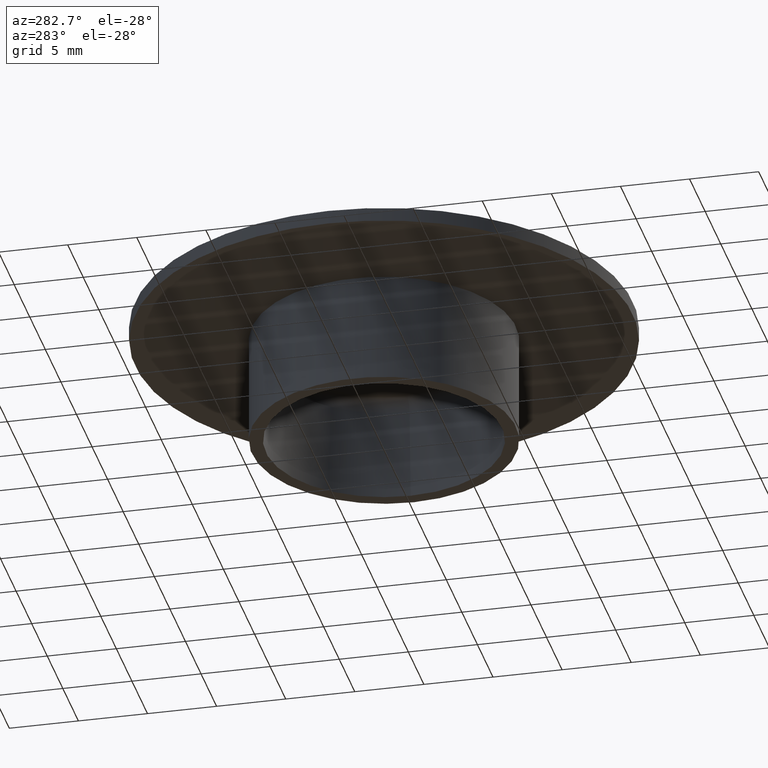
[diagram: clean part render]
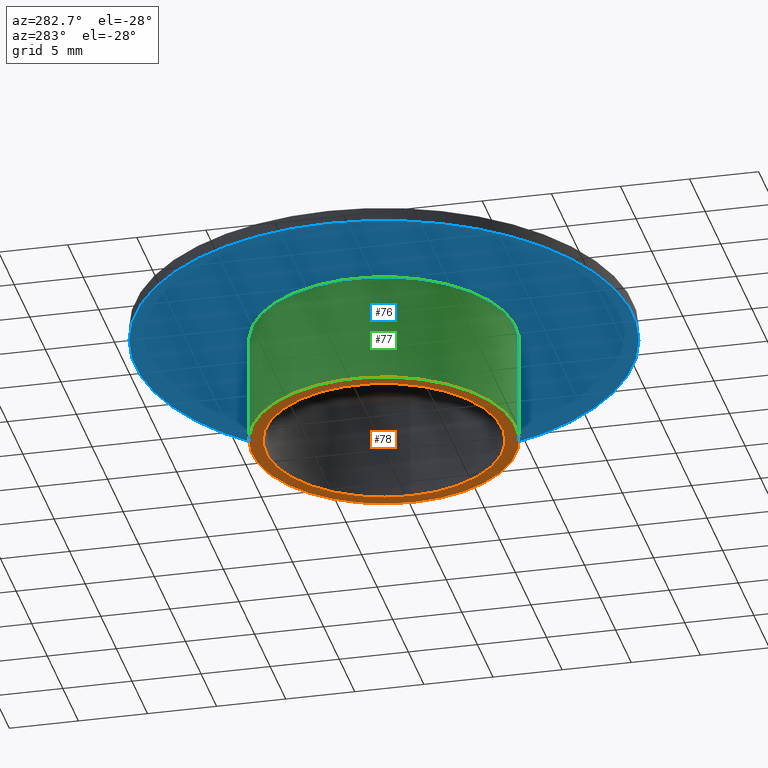
[diagram: same view with three faces highlighted in distinct colors, each labeled with its STEP entity id]
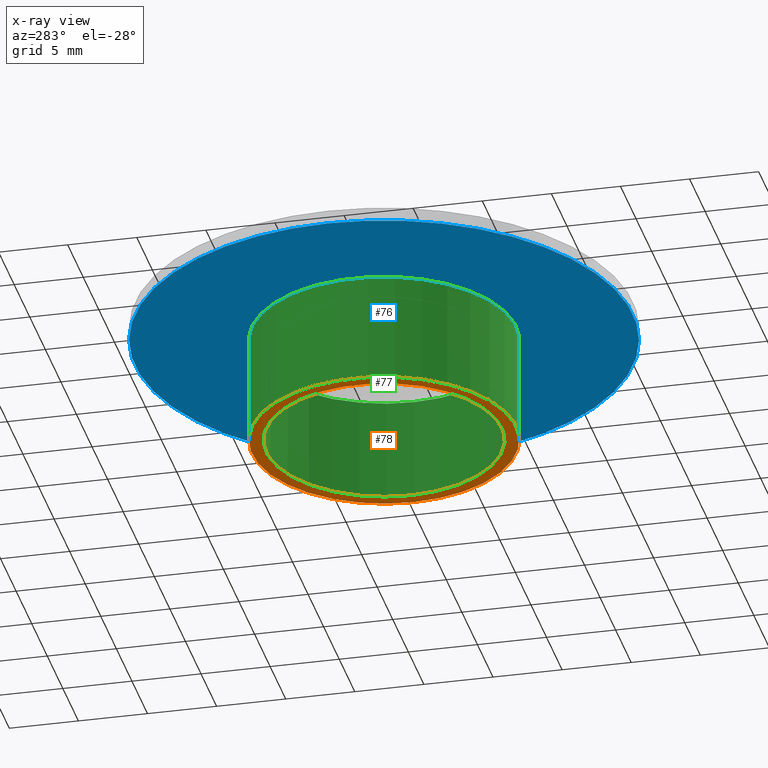
[diagram: x-ray of the same camera — body ghosted, the three highlighted faces saturated]
A machine part, auxiliary view with three faces highlighted in distinct colors.
The next image is the same camera in x-ray (body ghosted, the three faces saturated) — at least one of them is partly hidden behind the body in this view.
Their STEP definitions:

[orange] entity #78 — the highlighted planar face has unit normal (-0, 0, 1).
#78 = ADVANCED_FACE( '', ( #93, #94 ), #95, .F. );
#93 = FACE_OUTER_BOUND( '', #115, .T. );
#94 = FACE_BOUND( '', #116, .T. );
#95 = PLANE( '', #117 );
#115 = EDGE_LOOP( '', ( #143 ) );
#116 = EDGE_LOOP( '', ( #144 ) );
#117 = AXIS2_PLACEMENT_3D( '', #145, #146, #147 );
#143 = ORIENTED_EDGE( '', *, *, #169, .F. );
#144 = ORIENTED_EDGE( '', *, *, #170, .T. );
#145 = CARTESIAN_POINT( '', ( 2.12435339080604E-031, 8.54999999999999, -3.46944695195361E-015 ) );
#146 = DIRECTION( '', ( -6.12303176911189E-017, 0.000000000000000, 1.00000000000000 ) );
#147 = DIRECTION( '', ( 1.00000000000000, 0.000000000000000, 6.12303176911189E-017 ) );
#169 = EDGE_CURVE( '', #179, #179, #180, .T. );
#170 = EDGE_CURVE( '', #181, #181, #182, .T. );
#179 = VERTEX_POINT( '', #193 );
#180 = CIRCLE( '', #194, 9.54999999999999 );
#181 = VERTEX_POINT( '', #195 );
#182 = CIRCLE( '', #196, 8.54999999999999 );
#193 = CARTESIAN_POINT( '', ( 9.54999999999999, 0.000000000000000, -6.35414436995704E-015 ) );
#194 = AXIS2_PLACEMENT_3D( '', #210, #211, #212 );
#195 = CARTESIAN_POINT( '', ( 8.54999999999999, 0.000000000000000, -6.41537468764816E-015 ) );
#196 = AXIS2_PLACEMENT_3D( '', #213, #214, #215 );
#210 = CARTESIAN_POINT( '', ( 4.24870678161208E-031, 0.000000000000000, -6.93889390390723E-015 ) );
#211 = DIRECTION( '', ( -6.12303176911189E-017, 0.000000000000000, 1.00000000000000 ) );
#212 = DIRECTION( '', ( 1.00000000000000, 0.000000000000000, 6.12303176911189E-017 ) );
#213 = CARTESIAN_POINT( '', ( 4.24870678161208E-031, 0.000000000000000, -6.93889390390723E-015 ) );
#214 = DIRECTION( '', ( -6.12303176911189E-017, 0.000000000000000, 1.00000000000000 ) );
#215 = DIRECTION( '', ( 1.00000000000000, 0.000000000000000, 6.12303176911189E-017 ) );

[blue] entity #76 — the highlighted planar face has unit normal (-0, 0, 1).
#76 = ADVANCED_FACE( '', ( #87, #88 ), #89, .F. );
#87 = FACE_OUTER_BOUND( '', #109, .T. );
#88 = FACE_BOUND( '', #110, .T. );
#89 = PLANE( '', #111 );
#109 = EDGE_LOOP( '', ( #133 ) );
#110 = EDGE_LOOP( '', ( #134 ) );
#111 = AXIS2_PLACEMENT_3D( '', #135, #136, #137 );
#133 = ORIENTED_EDGE( '', *, *, #167, .F. );
#134 = ORIENTED_EDGE( '', *, *, #168, .T. );
#135 = CARTESIAN_POINT( '', ( -4.89842541528951E-016, 9.54999999999999, 8.00000000000000 ) );
#136 = DIRECTION( '', ( -6.12303176911189E-017, 0.000000000000000, 1.00000000000000 ) );
#137 = DIRECTION( '', ( 1.00000000000000, 0.000000000000000, 6.12303176911189E-017 ) );
#167 = EDGE_CURVE( '', #175, #175, #176, .T. );
#168 = EDGE_CURVE( '', #177, #177, #178, .T. );
#175 = VERTEX_POINT( '', #189 );
#176 = CIRCLE( '', #190, 18.0000000000000 );
#177 = VERTEX_POINT( '', #191 );
#178 = CIRCLE( '', #192, 9.55000000000000 );
#189 = CARTESIAN_POINT( '', ( 18.0000000000000, 0.000000000000000, 8.00000000000000 ) );
#190 = AXIS2_PLACEMENT_3D( '', #204, #205, #206 );
#191 = CARTESIAN_POINT( '', ( 9.55000000000000, 0.000000000000000, 8.00000000000000 ) );
#192 = AXIS2_PLACEMENT_3D( '', #207, #208, #209 );
#204 = CARTESIAN_POINT( '', ( -4.89842541528951E-016, 0.000000000000000, 8.00000000000000 ) );
#205 = DIRECTION( '', ( -6.12303176911189E-017, 0.000000000000000, 1.00000000000000 ) );
#206 = DIRECTION( '', ( 1.00000000000000, 0.000000000000000, 6.12303176911189E-017 ) );
#207 = CARTESIAN_POINT( '', ( -4.89842541528951E-016, 0.000000000000000, 8.00000000000000 ) );
#208 = DIRECTION( '', ( -6.12303176911189E-017, 0.000000000000000, 1.00000000000000 ) );
#209 = DIRECTION( '', ( 1.00000000000000, 0.000000000000000, 6.12303176911189E-017 ) );

[green] entity #77 — the highlighted cylindrical surface (bore or boss wall) has radius 9.55 mm, axis along (0, 0, -1).
#77 = ADVANCED_FACE( '', ( #90, #91 ), #92, .T. );
#90 = FACE_OUTER_BOUND( '', #112, .T. );
#91 = FACE_OUTER_BOUND( '', #113, .T. );
#92 = CYLINDRICAL_SURFACE( '', #114, 9.55000000000000 );
#112 = EDGE_LOOP( '', ( #138 ) );
#113 = EDGE_LOOP( '', ( #139 ) );
#114 = AXIS2_PLACEMENT_3D( '', #140, #141, #142 );
#138 = ORIENTED_EDGE( '', *, *, #168, .F. );
#139 = ORIENTED_EDGE( '', *, *, #169, .T. );
#140 = CARTESIAN_POINT( '', ( -9.67439019519678E-015, 0.000000000000000, 158.000000000000 ) );
#141 = DIRECTION( '', ( 6.12303176911189E-017, 0.000000000000000, -1.00000000000000 ) );
#142 = DIRECTION( '', ( 1.00000000000000, 0.000000000000000, 6.12303176911189E-017 ) );
#168 = EDGE_CURVE( '', #177, #177, #178, .T. );
#169 = EDGE_CURVE( '', #179, #179, #180, .T. );
#177 = VERTEX_POINT( '', #191 );
#178 = CIRCLE( '', #192, 9.55000000000000 );
#179 = VERTEX_POINT( '', #193 );
#180 = CIRCLE( '', #194, 9.54999999999999 );
#191 = CARTESIAN_POINT( '', ( 9.55000000000000, 0.000000000000000, 8.00000000000000 ) );
#192 = AXIS2_PLACEMENT_3D( '', #207, #208, #209 );
#193 = CARTESIAN_POINT( '', ( 9.54999999999999, 0.000000000000000, -6.35414436995704E-015 ) );
#194 = AXIS2_PLACEMENT_3D( '', #210, #211, #212 );
#207 = CARTESIAN_POINT( '', ( -4.89842541528951E-016, 0.000000000000000, 8.00000000000000 ) );
#208 = DIRECTION( '', ( -6.12303176911189E-017, 0.000000000000000, 1.00000000000000 ) );
#209 = DIRECTION( '', ( 1.00000000000000, 0.000000000000000, 6.12303176911189E-017 ) );
#210 = CARTESIAN_POINT( '', ( 4.24870678161208E-031, 0.000000000000000, -6.93889390390723E-015 ) );
#211 = DIRECTION( '', ( -6.12303176911189E-017, 0.000000000000000, 1.00000000000000 ) );
#212 = DIRECTION( '', ( 1.00000000000000, 0.000000000000000, 6.12303176911189E-017 ) );